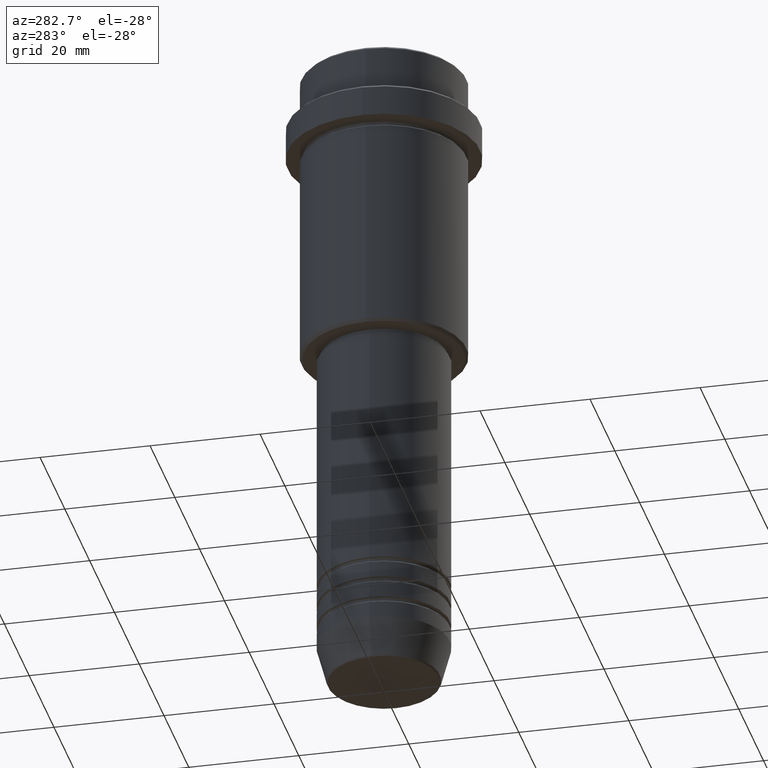
[diagram: clean part render]
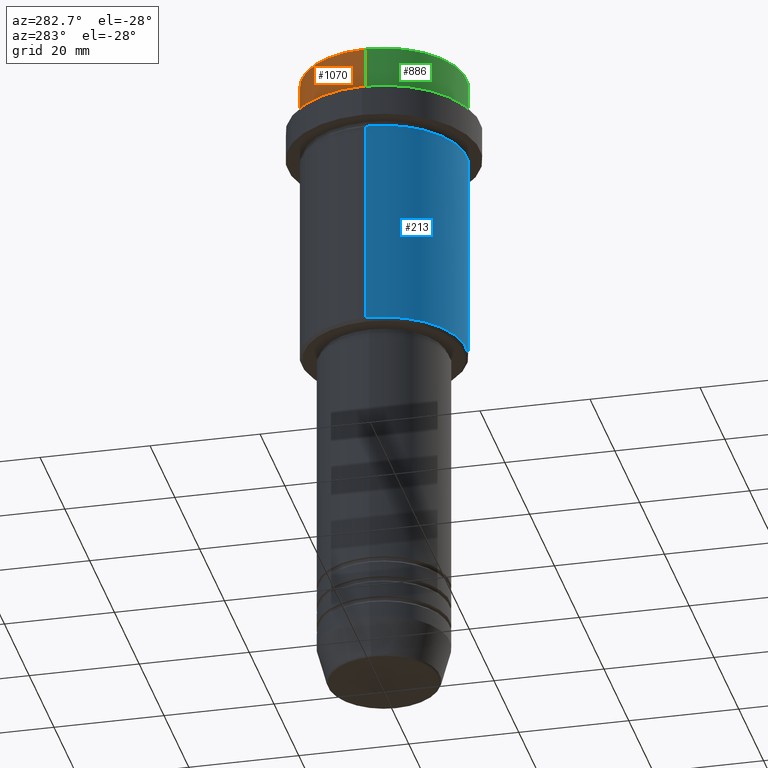
[diagram: same view with three faces highlighted in distinct colors, each labeled with its STEP entity id]
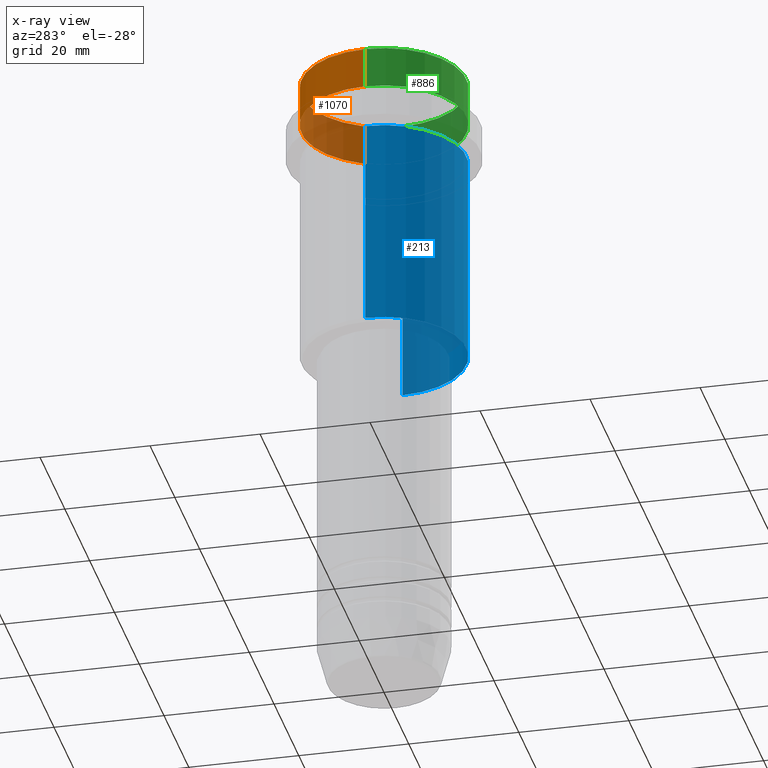
[diagram: x-ray of the same camera — body ghosted, the three highlighted faces saturated]
A machine part, auxiliary view with three faces highlighted in distinct colors.
The next image is the same camera in x-ray (body ghosted, the three faces saturated) — at least one of them is partly hidden behind the body in this view.
Their STEP definitions:

[orange] entity #1070 — the highlighted cylindrical surface (partial cylindrical patch) has radius 15 mm, axis along (-0, -0, 1).
#7 = ORIENTED_EDGE ( 'NONE', *, *, #468, .T. ) ;
#24 = CARTESIAN_POINT ( 'NONE',  ( 0.000000000000000000, 0.000000000000000000, -7.999999999999998224 ) ) ;
#45 = VERTEX_POINT ( 'NONE', #1289 ) ;
#97 = DIRECTION ( 'NONE',  ( 1.000000000000000000, 0.000000000000000000, 0.000000000000000000 ) ) ;
#153 = VERTEX_POINT ( 'NONE', #500 ) ;
#165 = CARTESIAN_POINT ( 'NONE',  ( -15.00000000000000000, 1.836970198721029589E-15, 0.000000000000000000 ) ) ;
#232 = EDGE_CURVE ( 'NONE', #504, #153, #1317, .T. ) ;
#255 = EDGE_LOOP ( 'NONE', ( #7, #272, #454, #1160 ) ) ;
#272 = ORIENTED_EDGE ( 'NONE', *, *, #1267, .T. ) ;
#285 = CARTESIAN_POINT ( 'NONE',  ( 0.000000000000000000, 0.000000000000000000, -0.4999999999999970024 ) ) ;
#341 = EDGE_CURVE ( 'NONE', #1248, #153, #1299, .T. ) ;
#353 = DIRECTION ( 'NONE',  ( -0.000000000000000000, -0.000000000000000000, 1.000000000000000000 ) ) ;
#356 = CARTESIAN_POINT ( 'NONE',  ( 0.000000000000000000, 0.000000000000000000, 0.000000000000000000 ) ) ;
#454 = ORIENTED_EDGE ( 'NONE', *, *, #232, .T. ) ;
#456 = DIRECTION ( 'NONE',  ( 1.000000000000000000, 0.000000000000000000, 0.000000000000000000 ) ) ;
#468 = EDGE_CURVE ( 'NONE', #1248, #45, #840, .T. ) ;
#500 = CARTESIAN_POINT ( 'NONE',  ( 15.00000000000000000, 0.000000000000000000, -0.4999999999999970024 ) ) ;
#504 = VERTEX_POINT ( 'NONE', #920 ) ;
#534 = AXIS2_PLACEMENT_3D ( 'NONE', #24, #353, #1140 ) ;
#549 = CARTESIAN_POINT ( 'NONE',  ( 15.00000000000000000, 0.000000000000000000, -7.999999999999998224 ) ) ;
#572 = CYLINDRICAL_SURFACE ( 'NONE', #1176, 15.00000000000000000 ) ;
#695 = VECTOR ( 'NONE', #1263, 1000.000000000000000 ) ;
#739 = AXIS2_PLACEMENT_3D ( 'NONE', #285, #1380, #97 ) ;
#840 = CIRCLE ( 'NONE', #534, 15.00000000000000000 ) ;
#913 = VECTOR ( 'NONE', #1403, 1000.000000000000000 ) ;
#920 = CARTESIAN_POINT ( 'NONE',  ( -15.00000000000000000, 1.836970198721029589E-15, -0.4999999999999970024 ) ) ;
#924 = FACE_OUTER_BOUND ( 'NONE', #255, .T. ) ;
#998 = CARTESIAN_POINT ( 'NONE',  ( 15.00000000000000000, 0.000000000000000000, 0.000000000000000000 ) ) ;
#1070 = ADVANCED_FACE ( 'NONE', ( #924 ), #572, .T. ) ;
#1140 = DIRECTION ( 'NONE',  ( 1.000000000000000000, 0.000000000000000000, 0.000000000000000000 ) ) ;
#1160 = ORIENTED_EDGE ( 'NONE', *, *, #341, .F. ) ;
#1176 = AXIS2_PLACEMENT_3D ( 'NONE', #356, #1204, #456 ) ;
#1204 = DIRECTION ( 'NONE',  ( -0.000000000000000000, -0.000000000000000000, 1.000000000000000000 ) ) ;
#1248 = VERTEX_POINT ( 'NONE', #549 ) ;
#1254 = LINE ( 'NONE', #165, #695 ) ;
#1263 = DIRECTION ( 'NONE',  ( -0.000000000000000000, -0.000000000000000000, 1.000000000000000000 ) ) ;
#1267 = EDGE_CURVE ( 'NONE', #45, #504, #1254, .T. ) ;
#1289 = CARTESIAN_POINT ( 'NONE',  ( -15.00000000000000000, 1.836970198721029589E-15, -7.999999999999998224 ) ) ;
#1299 = LINE ( 'NONE', #998, #913 ) ;
#1317 = CIRCLE ( 'NONE', #739, 15.00000000000000000 ) ;
#1380 = DIRECTION ( 'NONE',  ( 0.000000000000000000, 0.000000000000000000, -1.000000000000000000 ) ) ;
#1403 = DIRECTION ( 'NONE',  ( -0.000000000000000000, -0.000000000000000000, 1.000000000000000000 ) ) ;

[blue] entity #213 — the highlighted cylindrical surface (partial cylindrical patch) has radius 15 mm, axis along (-0, -0, 1).
#5 = CIRCLE ( 'NONE', #1133, 15.00000000000000000 ) ;
#34 = ORIENTED_EDGE ( 'NONE', *, *, #759, .T. ) ;
#82 = DIRECTION ( 'NONE',  ( -0.000000000000000000, -0.000000000000000000, 1.000000000000000000 ) ) ;
#145 = VERTEX_POINT ( 'NONE', #400 ) ;
#148 = ORIENTED_EDGE ( 'NONE', *, *, #352, .T. ) ;
#175 = DIRECTION ( 'NONE',  ( 1.000000000000000000, 0.000000000000000000, 0.000000000000000000 ) ) ;
#211 = CARTESIAN_POINT ( 'NONE',  ( -15.00000000000000000, 1.836970198721029589E-15, 0.000000000000000000 ) ) ;
#213 = ADVANCED_FACE ( 'NONE', ( #1252 ), #967, .T. ) ;
#248 = CARTESIAN_POINT ( 'NONE',  ( -15.00000000000000355, 1.836970198721029983E-15, -16.00000000000000000 ) ) ;
#282 = DIRECTION ( 'NONE',  ( -0.000000000000000000, -0.000000000000000000, 1.000000000000000000 ) ) ;
#299 = VECTOR ( 'NONE', #82, 1000.000000000000000 ) ;
#352 = EDGE_CURVE ( 'NONE', #145, #837, #5, .T. ) ;
#355 = ORIENTED_EDGE ( 'NONE', *, *, #628, .F. ) ;
#369 = LINE ( 'NONE', #211, #299 ) ;
#390 = DIRECTION ( 'NONE',  ( 1.000000000000000000, 0.000000000000000000, 0.000000000000000000 ) ) ;
#400 = CARTESIAN_POINT ( 'NONE',  ( -15.00000000000000000, 1.836970198721029589E-15, -54.49999999999997868 ) ) ;
#417 = CARTESIAN_POINT ( 'NONE',  ( 15.00000000000000178, 0.000000000000000000, -16.00000000000000000 ) ) ;
#570 = VERTEX_POINT ( 'NONE', #248 ) ;
#628 = EDGE_CURVE ( 'NONE', #570, #1026, #1195, .T. ) ;
#629 = CARTESIAN_POINT ( 'NONE',  ( 15.00000000000000000, 0.000000000000000000, 0.000000000000000000 ) ) ;
#717 = AXIS2_PLACEMENT_3D ( 'NONE', #744, #851, #175 ) ;
#720 = LINE ( 'NONE', #629, #1242 ) ;
#743 = DIRECTION ( 'NONE',  ( -0.000000000000000000, -0.000000000000000000, 1.000000000000000000 ) ) ;
#744 = CARTESIAN_POINT ( 'NONE',  ( 0.000000000000000000, 0.000000000000000000, -16.00000000000000000 ) ) ;
#759 = EDGE_CURVE ( 'NONE', #837, #1026, #720, .T. ) ;
#837 = VERTEX_POINT ( 'NONE', #1198 ) ;
#851 = DIRECTION ( 'NONE',  ( -0.000000000000000000, -0.000000000000000000, 1.000000000000000000 ) ) ;
#898 = EDGE_CURVE ( 'NONE', #145, #570, #369, .T. ) ;
#955 = CARTESIAN_POINT ( 'NONE',  ( 0.000000000000000000, 0.000000000000000000, 0.000000000000000000 ) ) ;
#967 = CYLINDRICAL_SURFACE ( 'NONE', #982, 15.00000000000000000 ) ;
#982 = AXIS2_PLACEMENT_3D ( 'NONE', #955, #1369, #390 ) ;
#1011 = ORIENTED_EDGE ( 'NONE', *, *, #898, .F. ) ;
#1026 = VERTEX_POINT ( 'NONE', #417 ) ;
#1077 = CARTESIAN_POINT ( 'NONE',  ( 0.000000000000000000, 0.000000000000000000, -54.49999999999997868 ) ) ;
#1133 = AXIS2_PLACEMENT_3D ( 'NONE', #1077, #743, #1305 ) ;
#1195 = CIRCLE ( 'NONE', #717, 15.00000000000000178 ) ;
#1198 = CARTESIAN_POINT ( 'NONE',  ( 15.00000000000000000, 0.000000000000000000, -54.49999999999997868 ) ) ;
#1242 = VECTOR ( 'NONE', #282, 1000.000000000000000 ) ;
#1252 = FACE_OUTER_BOUND ( 'NONE', #1253, .T. ) ;
#1253 = EDGE_LOOP ( 'NONE', ( #1011, #148, #34, #355 ) ) ;
#1305 = DIRECTION ( 'NONE',  ( -1.000000000000000000, 0.000000000000000000, 0.000000000000000000 ) ) ;
#1369 = DIRECTION ( 'NONE',  ( -0.000000000000000000, -0.000000000000000000, 1.000000000000000000 ) ) ;

[green] entity #886 — the highlighted cylindrical surface (partial cylindrical patch) has radius 15 mm, axis along (-0, -0, 1).
#16 = DIRECTION ( 'NONE',  ( -0.000000000000000000, -0.000000000000000000, 1.000000000000000000 ) ) ;
#45 = VERTEX_POINT ( 'NONE', #1289 ) ;
#94 = CARTESIAN_POINT ( 'NONE',  ( 0.000000000000000000, 0.000000000000000000, 0.000000000000000000 ) ) ;
#114 = DIRECTION ( 'NONE',  ( -0.000000000000000000, -0.000000000000000000, 1.000000000000000000 ) ) ;
#136 = DIRECTION ( 'NONE',  ( 1.000000000000000000, 0.000000000000000000, 0.000000000000000000 ) ) ;
#153 = VERTEX_POINT ( 'NONE', #500 ) ;
#165 = CARTESIAN_POINT ( 'NONE',  ( -15.00000000000000000, 1.836970198721029589E-15, 0.000000000000000000 ) ) ;
#341 = EDGE_CURVE ( 'NONE', #1248, #153, #1299, .T. ) ;
#368 = ORIENTED_EDGE ( 'NONE', *, *, #496, .T. ) ;
#419 = CIRCLE ( 'NONE', #665, 15.00000000000000000 ) ;
#426 = DIRECTION ( 'NONE',  ( 0.000000000000000000, 0.000000000000000000, -1.000000000000000000 ) ) ;
#489 = AXIS2_PLACEMENT_3D ( 'NONE', #94, #16, #136 ) ;
#496 = EDGE_CURVE ( 'NONE', #45, #1248, #419, .T. ) ;
#500 = CARTESIAN_POINT ( 'NONE',  ( 15.00000000000000000, 0.000000000000000000, -0.4999999999999970024 ) ) ;
#504 = VERTEX_POINT ( 'NONE', #920 ) ;
#506 = ORIENTED_EDGE ( 'NONE', *, *, #341, .T. ) ;
#549 = CARTESIAN_POINT ( 'NONE',  ( 15.00000000000000000, 0.000000000000000000, -7.999999999999998224 ) ) ;
#561 = AXIS2_PLACEMENT_3D ( 'NONE', #634, #426, #873 ) ;
#634 = CARTESIAN_POINT ( 'NONE',  ( 0.000000000000000000, 0.000000000000000000, -0.4999999999999970024 ) ) ;
#654 = CYLINDRICAL_SURFACE ( 'NONE', #489, 15.00000000000000000 ) ;
#665 = AXIS2_PLACEMENT_3D ( 'NONE', #817, #114, #1309 ) ;
#695 = VECTOR ( 'NONE', #1263, 1000.000000000000000 ) ;
#775 = FACE_OUTER_BOUND ( 'NONE', #1372, .T. ) ;
#798 = ORIENTED_EDGE ( 'NONE', *, *, #1267, .F. ) ;
#817 = CARTESIAN_POINT ( 'NONE',  ( 0.000000000000000000, 0.000000000000000000, -7.999999999999998224 ) ) ;
#873 = DIRECTION ( 'NONE',  ( 1.000000000000000000, 0.000000000000000000, 0.000000000000000000 ) ) ;
#886 = ADVANCED_FACE ( 'NONE', ( #775 ), #654, .T. ) ;
#913 = VECTOR ( 'NONE', #1403, 1000.000000000000000 ) ;
#920 = CARTESIAN_POINT ( 'NONE',  ( -15.00000000000000000, 1.836970198721029589E-15, -0.4999999999999970024 ) ) ;
#936 = EDGE_CURVE ( 'NONE', #153, #504, #1260, .T. ) ;
#998 = CARTESIAN_POINT ( 'NONE',  ( 15.00000000000000000, 0.000000000000000000, 0.000000000000000000 ) ) ;
#1107 = ORIENTED_EDGE ( 'NONE', *, *, #936, .T. ) ;
#1248 = VERTEX_POINT ( 'NONE', #549 ) ;
#1254 = LINE ( 'NONE', #165, #695 ) ;
#1260 = CIRCLE ( 'NONE', #561, 15.00000000000000000 ) ;
#1263 = DIRECTION ( 'NONE',  ( -0.000000000000000000, -0.000000000000000000, 1.000000000000000000 ) ) ;
#1267 = EDGE_CURVE ( 'NONE', #45, #504, #1254, .T. ) ;
#1289 = CARTESIAN_POINT ( 'NONE',  ( -15.00000000000000000, 1.836970198721029589E-15, -7.999999999999998224 ) ) ;
#1299 = LINE ( 'NONE', #998, #913 ) ;
#1309 = DIRECTION ( 'NONE',  ( 1.000000000000000000, 0.000000000000000000, 0.000000000000000000 ) ) ;
#1372 = EDGE_LOOP ( 'NONE', ( #798, #368, #506, #1107 ) ) ;
#1403 = DIRECTION ( 'NONE',  ( -0.000000000000000000, -0.000000000000000000, 1.000000000000000000 ) ) ;